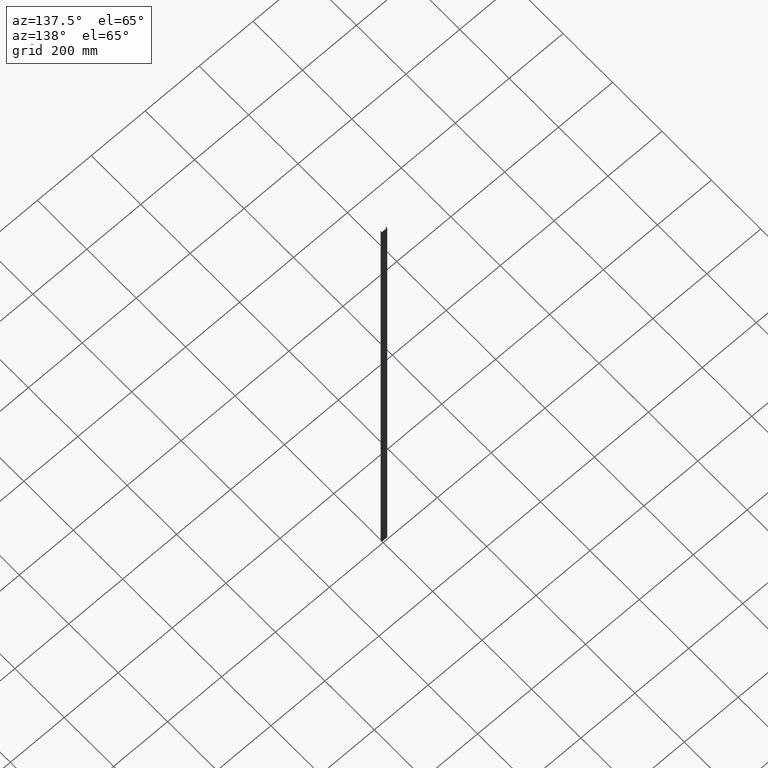
[diagram: clean part render]
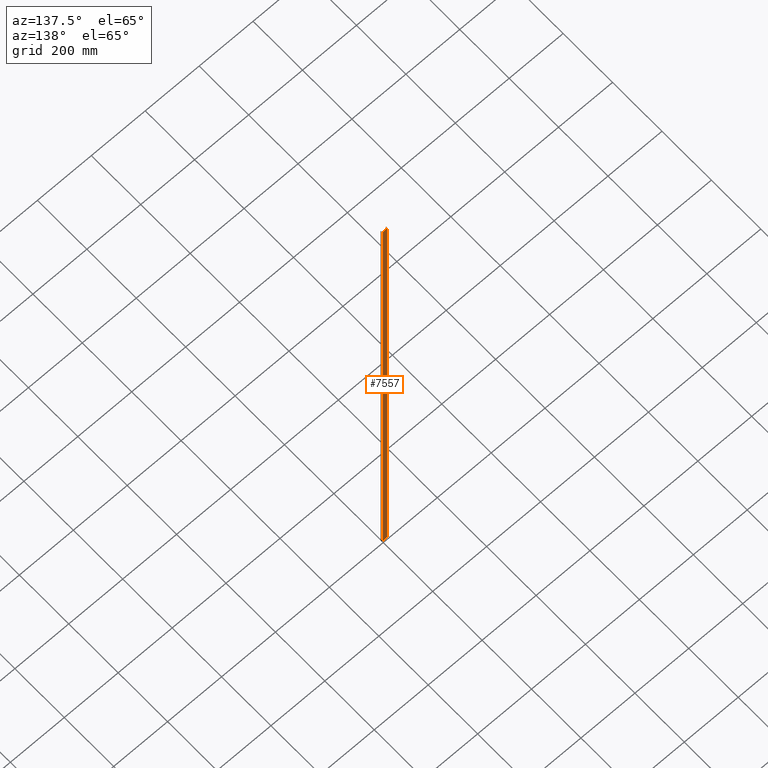
[diagram: same view with one face highlighted and labeled with its STEP entity id]
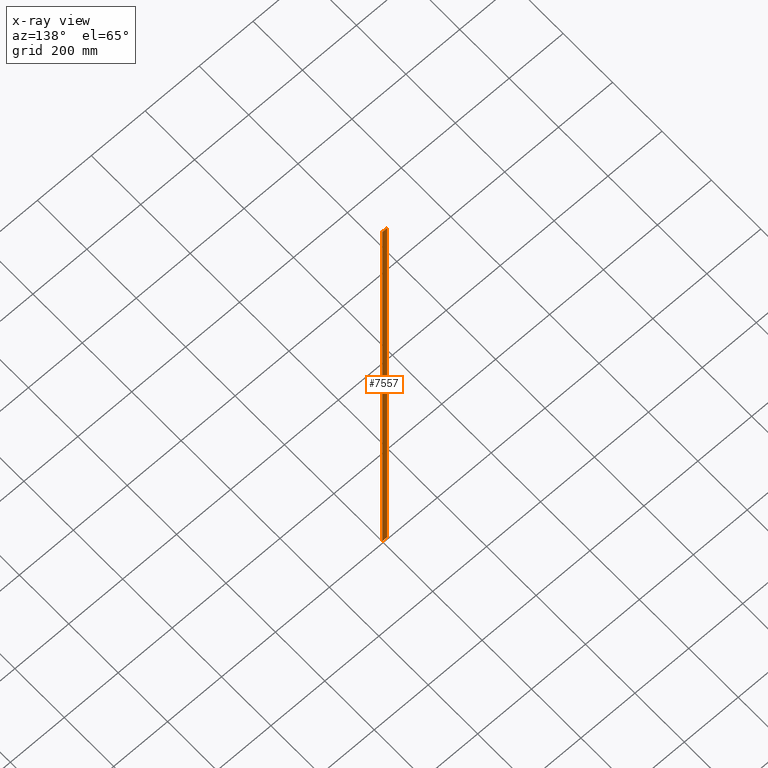
[diagram: x-ray of the same camera — body ghosted, the highlighted face saturated]
A machine part, auxiliary view. The second image highlights one B-rep face of the part: STEP entity #7557.
The next image is the same camera in x-ray: the body ghosted, the highlighted face saturated — about 0% of this face is hidden behind the body in this view.
In plain terms, the highlighted planar face has unit normal (0, -1, 0).
Its self-contained STEP definition (entity closure, byte-faithful):
#531 = VECTOR ( 'NONE', #14158, 1000.000000000000000 ) ;
#571 = VERTEX_POINT ( 'NONE', #8437 ) ;
#2174 = EDGE_CURVE ( 'NONE', #15875, #571, #14871, .T. ) ;
#2245 = VECTOR ( 'NONE', #12312, 1000.000000000000000 ) ;
#2511 = VERTEX_POINT ( 'NONE', #13352 ) ;
#3045 = CARTESIAN_POINT ( 'NONE',  ( -8.549999999999998934, 6.000000000000000000, -1000.000000000000000 ) ) ;
#3125 = EDGE_CURVE ( 'NONE', #2511, #11199, #10934, .T. ) ;
#4050 = ORIENTED_EDGE ( 'NONE', *, *, #4921, .F. ) ;
#4921 = EDGE_CURVE ( 'NONE', #571, #11199, #12407, .T. ) ;
#6494 = CARTESIAN_POINT ( 'NONE',  ( 8.549999999999998934, 6.000000000000000000, 1000.000000000000000 ) ) ;
#7034 = DIRECTION ( 'NONE',  ( 0.000000000000000000, -1.000000000000000000, 0.000000000000000000 ) ) ;
#7059 = AXIS2_PLACEMENT_3D ( 'NONE', #13968, #7034, #8433 ) ;
#7557 = ADVANCED_FACE ( 'NONE', ( #14376 ), #12570, .F. ) ;
#7595 = LINE ( 'NONE', #6494, #11927 ) ;
#7657 = ORIENTED_EDGE ( 'NONE', *, *, #3125, .T. ) ;
#8115 = CARTESIAN_POINT ( 'NONE',  ( -8.549999999999998934, 6.000000000000000000, 1000.000000000000000 ) ) ;
#8433 = DIRECTION ( 'NONE',  ( 0.000000000000000000, -0.000000000000000000, -1.000000000000000000 ) ) ;
#8437 = CARTESIAN_POINT ( 'NONE',  ( -8.549999999999998934, 6.000000000000000000, 1000.000000000000000 ) ) ;
#8676 = CARTESIAN_POINT ( 'NONE',  ( -8.549999999999998934, 6.000000000000000000, -1000.000000000000000 ) ) ;
#9255 = DIRECTION ( 'NONE',  ( -1.000000000000000000, -0.000000000000000000, -0.000000000000000000 ) ) ;
#9316 = CARTESIAN_POINT ( 'NONE',  ( -8.549999999999998934, 6.000000000000000000, 1000.000000000000000 ) ) ;
#9350 = DIRECTION ( 'NONE',  ( -0.000000000000000000, -0.000000000000000000, -1.000000000000000000 ) ) ;
#9382 = EDGE_CURVE ( 'NONE', #15875, #2511, #7595, .T. ) ;
#9824 = ORIENTED_EDGE ( 'NONE', *, *, #2174, .F. ) ;
#10934 = LINE ( 'NONE', #8676, #531 ) ;
#11199 = VERTEX_POINT ( 'NONE', #3045 ) ;
#11927 = VECTOR ( 'NONE', #9350, 1000.000000000000000 ) ;
#12312 = DIRECTION ( 'NONE',  ( -0.000000000000000000, -0.000000000000000000, -1.000000000000000000 ) ) ;
#12407 = LINE ( 'NONE', #8115, #2245 ) ;
#12570 = PLANE ( 'NONE',  #7059 ) ;
#12709 = EDGE_LOOP ( 'NONE', ( #7657, #4050, #9824, #16381 ) ) ;
#13352 = CARTESIAN_POINT ( 'NONE',  ( 8.549999999999998934, 6.000000000000000000, -1000.000000000000000 ) ) ;
#13968 = CARTESIAN_POINT ( 'NONE',  ( -8.549999999999998934, 6.000000000000000000, 1000.000000000000000 ) ) ;
#14158 = DIRECTION ( 'NONE',  ( -1.000000000000000000, -0.000000000000000000, -0.000000000000000000 ) ) ;
#14376 = FACE_OUTER_BOUND ( 'NONE', #12709, .T. ) ;
#14871 = LINE ( 'NONE', #9316, #17257 ) ;
#15875 = VERTEX_POINT ( 'NONE', #17516 ) ;
#16381 = ORIENTED_EDGE ( 'NONE', *, *, #9382, .T. ) ;
#17257 = VECTOR ( 'NONE', #9255, 1000.000000000000000 ) ;
#17516 = CARTESIAN_POINT ( 'NONE',  ( 8.549999999999998934, 6.000000000000000000, 1000.000000000000000 ) ) ;